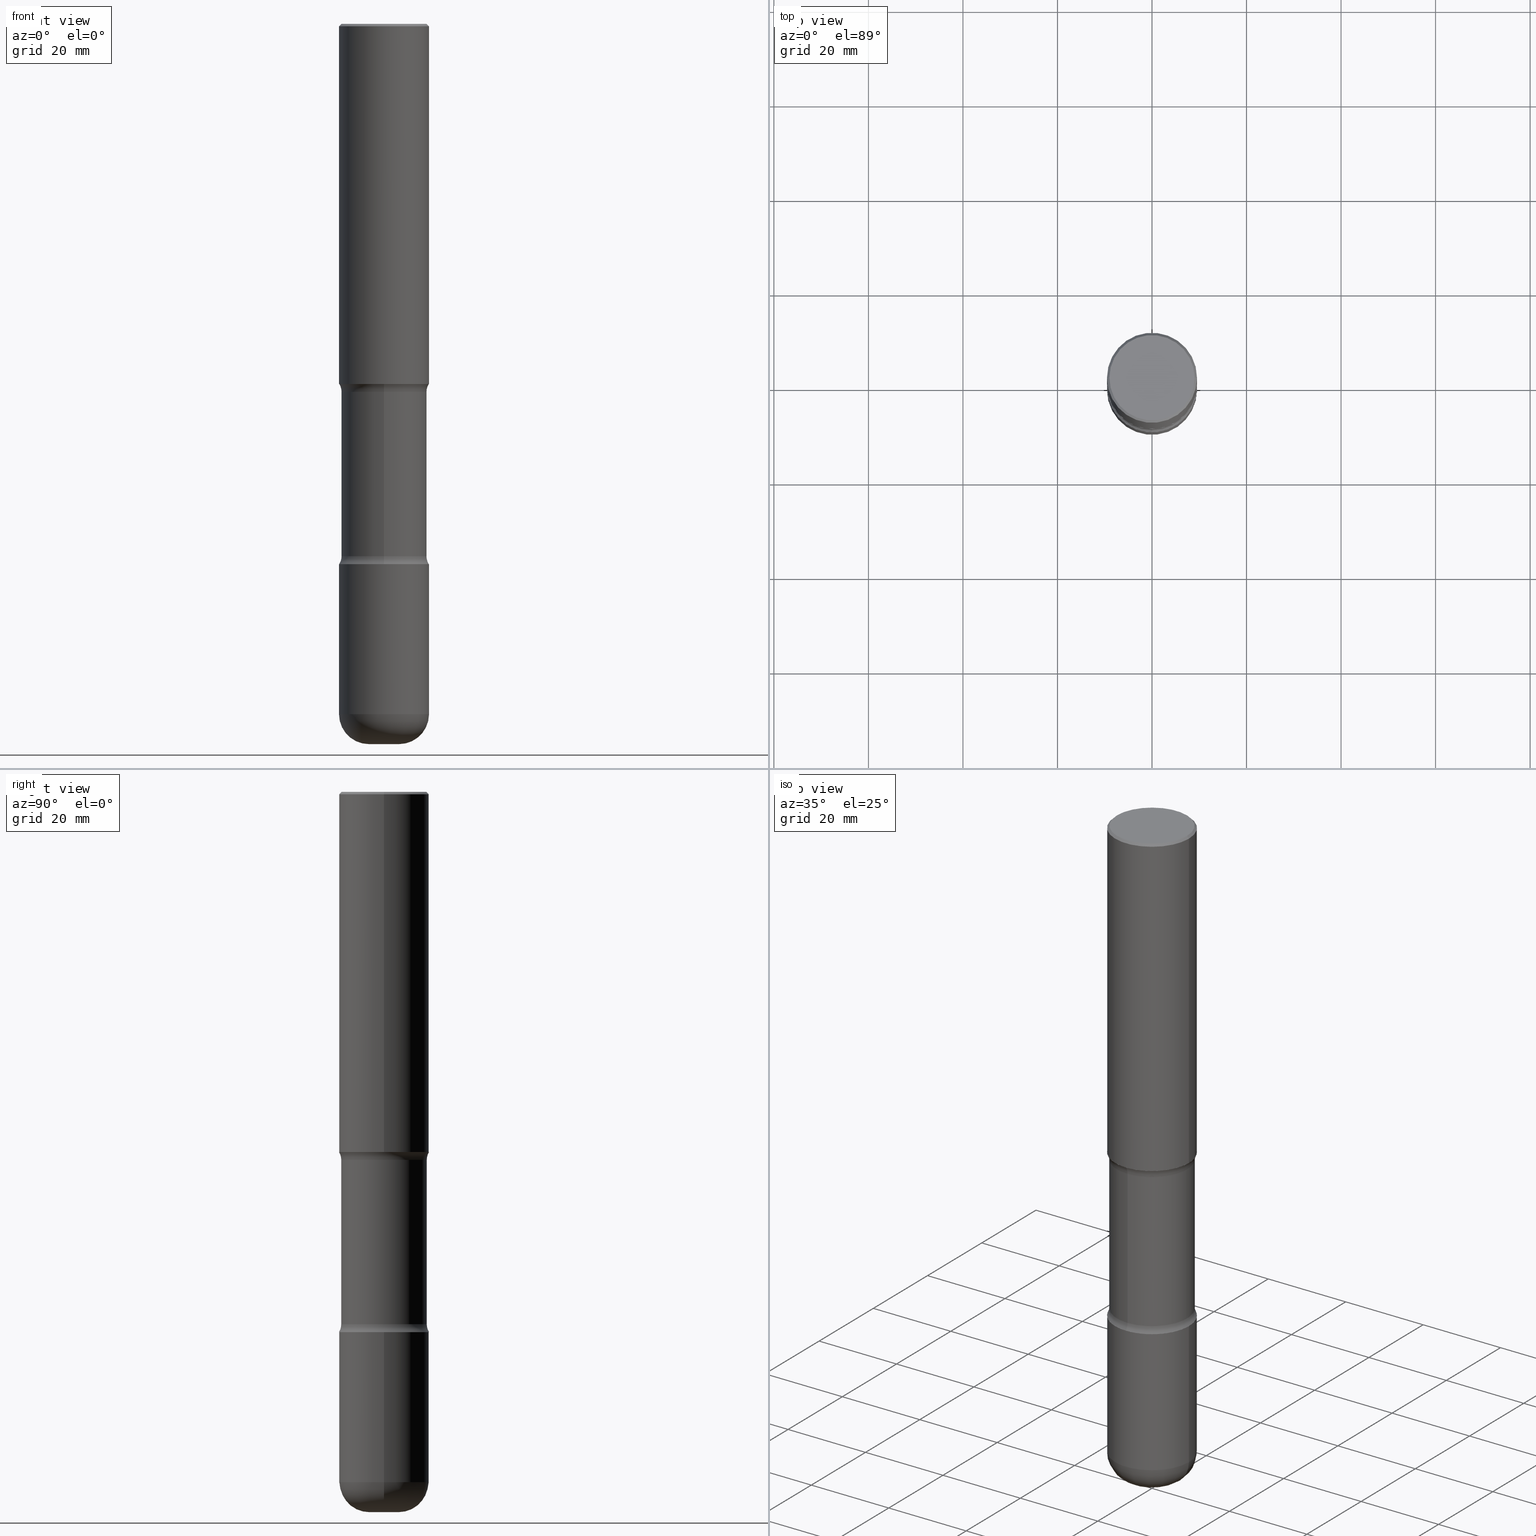
[diagram: canonical four-view strip — front | top / right | iso, engineering-drawing reading convention]
A machine part, canonical four-view strip (front | top / right | iso — engineering-drawing reading convention). The complete STEP part file that produces these views, byte-faithful:
ISO-10303-21;
HEADER;
FILE_DESCRIPTION (( 'STEP AP203' ),
    '1' );
FILE_NAME ('37950.STEP',
    '2024-03-02T01:44:41',
    ( '' ),
    ( '' ),
    'SwSTEP 2.0',
    'SolidWorks 2023',
    '' );
FILE_SCHEMA (( 'CONFIG_CONTROL_DESIGN' ));
ENDSEC;

DATA;
#1 = CARTESIAN_POINT ( 'NONE',  ( -2.508369580435144205E-15, -0.3562500000000108358, -3.065847835955328282 ) ) ;
#2 = VERTEX_POINT ( 'NONE', #532 ) ;
#3 = CARTESIAN_POINT ( 'NONE',  ( 4.890937612370289799E-31, -6.982962677686315028E-17, -0.02000000000000006981 ) ) ;
#4 = VERTEX_POINT ( 'NONE', #141 ) ;
#5 = AXIS2_PLACEMENT_3D ( 'NONE', #248, #452, #370 ) ;
#6 = LOCAL_TIME ( 20, 44, 41.00000000000000000, #250 ) ;
#7 = CARTESIAN_POINT ( 'NONE',  ( 7.402053284434616373E-29, -1.084094290665388719E-14, -3.065847835955329614 ) ) ;
#8 = VERTEX_POINT ( 'NONE', #235 ) ;
#9 =( CONVERSION_BASED_UNIT ( 'INCH', #429 ) LENGTH_UNIT ( ) NAMED_UNIT ( #436 ) );
#10 = CARTESIAN_POINT ( 'NONE',  ( 1.100460962783311244E-28, -1.571166602479415374E-14, -4.499999999999999112 ) ) ;
#11 = ORIENTED_EDGE ( 'NONE', *, *, #130, .T. ) ;
#12 = DIRECTION ( 'NONE',  ( 2.508247471065963170E-29, -3.401578717594097873E-15, -1.000000000000000000 ) ) ;
#13 = VERTEX_POINT ( 'NONE', #255 ) ;
#14 = PERSON_AND_ORGANIZATION ( #123, #503 ) ;
#15 = CIRCLE ( 'NONE', #327, 0.3750000000000003886 ) ;
#16 = AXIS2_PLACEMENT_3D ( 'NONE', #527, #22, #104 ) ;
#17 = CARTESIAN_POINT ( 'NONE',  ( 0.1250000000000005551, -2.182175836776964973E-14, -5.999999999999997335 ) ) ;
#18 = ORIENTED_EDGE ( 'NONE', *, *, #316, .T. ) ;
#19 = EDGE_CURVE ( 'NONE', #8, #56, #251, .T. ) ;
#20 = FACE_OUTER_BOUND ( 'NONE', #309, .T. ) ;
#21 = VERTEX_POINT ( 'NONE', #157 ) ;
#22 = DIRECTION ( 'NONE',  ( 2.445468806185136597E-29, -3.491481338843145583E-15, -1.000000000000000000 ) ) ;
#23 = ORIENTED_EDGE ( 'NONE', *, *, #239, .F. ) ;
#24 = AXIS2_PLACEMENT_3D ( 'NONE', #377, #458, #72 ) ;
#25 = AXIS2_PLACEMENT_3D ( 'NONE', #3, #217, #211 ) ;
#26 = ADVANCED_FACE ( 'NONE', ( #209 ), #544, .T. ) ;
#27 = VERTEX_POINT ( 'NONE', #113 ) ;
#28 = CARTESIAN_POINT ( 'NONE',  ( 7.336406418555407548E-29, -1.047444401652943320E-14, -2.999999999999999112 ) ) ;
#29 = CARTESIAN_POINT ( 'NONE',  ( 1.406144563556453319E-28, -2.007601769834808306E-14, -5.749999999999998224 ) ) ;
#30 = CIRCLE ( 'NONE', #234, 0.2499999999999993061 ) ;
#31 = AXIS2_PLACEMENT_3D ( 'NONE', #403, #144, #362 ) ;
#32 = DIRECTION ( 'NONE',  ( 1.000000000000000000, -6.982962677686265922E-15, 0.000000000000000000 ) ) ;
#33 = LOCAL_TIME ( 20, 44, 41.00000000000000000, #89 ) ;
#34 = ADVANCED_FACE ( 'NONE', ( #412 ), #47, .T. ) ;
#35 = DIRECTION ( 'NONE',  ( 2.508247471065963170E-29, -3.401578717594097873E-15, -1.000000000000000000 ) ) ;
#36 = CARTESIAN_POINT ( 'NONE',  ( 1.100460962783311244E-28, -1.571166602479415374E-14, -4.499999999999999112 ) ) ;
#37 = CARTESIAN_POINT ( 'NONE',  ( 7.407401089244291879E-29, -1.083328454578828421E-14, -3.065847835955329614 ) ) ;
#38 = APPROVAL_DATE_TIME ( #421, #139 ) ;
#39 = CC_DESIGN_PERSON_AND_ORGANIZATION_ASSIGNMENT ( #515, #382, ( #236 ) ) ;
#40 = AXIS2_PLACEMENT_3D ( 'NONE', #28, #501, #32 ) ;
#41 = VECTOR ( 'NONE', #166, 39.37007874015748143 ) ;
#42 = ORIENTED_EDGE ( 'NONE', *, *, #98, .F. ) ;
#43 = DIRECTION ( 'NONE',  ( -2.438088387897960049E-29, 3.491481338843145188E-15, 1.000000000000000000 ) ) ;
#44 = DIRECTION ( 'NONE',  ( 2.508247471065963170E-29, -3.401578717594097873E-15, -1.000000000000000000 ) ) ;
#45 = ORIENTED_EDGE ( 'NONE', *, *, #65, .F. ) ;
#46 = DIRECTION ( 'NONE',  ( 1.000000000000000000, -6.982962677686266711E-15, 4.876176775795935793E-29 ) ) ;
#47 = TOROIDAL_SURFACE ( 'NONE', #137, 0.1250000000000005274, 0.2499999999999993061 ) ;
#48 = AXIS2_PLACEMENT_3D ( 'NONE', #148, #231, #277 ) ;
#49 = EDGE_CURVE ( 'NONE', #4, #8, #155, .T. ) ;
#50 = CYLINDRICAL_SURFACE ( 'NONE', #95, 0.3750000000000003886 ) ;
#51 = CALENDAR_DATE ( 2024, 1, 3 ) ;
#52 = DIRECTION ( 'NONE',  ( -6.982962677686266711E-15, -1.000000000000000000, 3.491481338843145583E-15 ) ) ;
#53 = ORIENTED_EDGE ( 'NONE', *, *, #374, .F. ) ;
#54 = PRODUCT_RELATED_PRODUCT_CATEGORY ( 'detail', '', ( #79 ) ) ;
#55 = PLANE ( 'NONE',  #271 ) ;
#56 = VERTEX_POINT ( 'NONE', #369 ) ;
#57 = ADVANCED_FACE ( 'NONE', ( #415 ), #324, .F. ) ;
#58 = CIRCLE ( 'NONE', #491, 0.3750000000000003886 ) ;
#59 = PRODUCT_DEFINITION_FORMATION_WITH_SPECIFIED_SOURCE ( 'ANY', '', #79, .NOT_KNOWN. ) ;
#60 = APPROVAL_PERSON_ORGANIZATION ( #528, #139, #257 ) ;
#61 = CARTESIAN_POINT ( 'NONE',  ( 0.000000000000000000, 0.000000000000000000, 0.000000000000000000 ) ) ;
#62 = ORIENTED_EDGE ( 'NONE', *, *, #349, .F. ) ;
#63 = CARTESIAN_POINT ( 'NONE',  ( 7.242238421234168109E-29, -1.060929794840300496E-14, -2.999999999999999112 ) ) ;
#64 = ORIENTED_EDGE ( 'NONE', *, *, #75, .T. ) ;
#65 = EDGE_CURVE ( 'NONE', #276, #428, #259, .T. ) ;
#66 = FACE_OUTER_BOUND ( 'NONE', #238, .T. ) ;
#67 = ORIENTED_EDGE ( 'NONE', *, *, #65, .T. ) ;
#68 = AXIS2_PLACEMENT_3D ( 'NONE', #29, #153, #411 ) ;
#69 = AXIS2_PLACEMENT_3D ( 'NONE', #184, #188, #488 ) ;
#70 = CC_DESIGN_SECURITY_CLASSIFICATION ( #236, ( #59 ) ) ;
#71 = CARTESIAN_POINT ( 'NONE',  ( -0.1250000000000005274, -1.918783927864795467E-14, -5.749999999999998224 ) ) ;
#72 = DIRECTION ( 'NONE',  ( 1.000000000000000000, -6.982962677686266711E-15, 4.876231632511987623E-29 ) ) ;
#73 = SHAPE_DEFINITION_REPRESENTATION ( #216, #162 ) ;
#74 = DIRECTION ( 'NONE',  ( 1.000000000000000000, -6.982962677686265922E-15, 4.883557194083112901E-29 ) ) ;
#75 = EDGE_CURVE ( 'NONE', #241, #2, #30, .T. ) ;
#76 = DIRECTION ( 'NONE',  ( 0.7071067811865472397, -7.319954787623254468E-15, -0.7071067811865477948 ) ) ;
#77 = VECTOR ( 'NONE', #159, 39.37007874015748143 ) ;
#78 = CARTESIAN_POINT ( 'NONE',  ( 1.476698083443205790E-28, -2.081403410118529621E-14, -5.999999999999999112 ) ) ;
#79 = PRODUCT ( '37950', '37950', '', ( #266 ) ) ;
#80 = DIRECTION ( 'NONE',  ( -6.982962677686265133E-15, -1.000000000000000000, 0.000000000000000000 ) ) ;
#81 = CC_DESIGN_PERSON_AND_ORGANIZATION_ASSIGNMENT ( #14, #507, ( #286 ) ) ;
#82 = CARTESIAN_POINT ( 'NONE',  ( -0.3750000000000001110, 2.548781377355487113E-15, -0.02000000000000006981 ) ) ;
#83 = VERTEX_POINT ( 'NONE', #326 ) ;
#84 = DIRECTION ( 'NONE',  ( -2.445468806185136597E-29, 3.491481338843145583E-15, 1.000000000000000000 ) ) ;
#85 = AXIS2_PLACEMENT_3D ( 'NONE', #426, #514, #46 ) ;
#86 = CIRCLE ( 'NONE', #541, 0.3750000000000004996 ) ;
#87 = VERTEX_POINT ( 'NONE', #202 ) ;
#88 = DIRECTION ( 'NONE',  ( 1.000000000000000000, -6.982962677686265922E-15, 4.876176775795935793E-29 ) ) ;
#89 = COORDINATED_UNIVERSAL_TIME_OFFSET ( 5, 0, .BEHIND. ) ;
#90 = ORIENTED_EDGE ( 'NONE', *, *, #545, .F. ) ;
#91 = CALENDAR_DATE ( 2024, 1, 3 ) ;
#92 = ADVANCED_FACE ( 'NONE', ( #292 ), #108, .T. ) ;
#93 = DIRECTION ( 'NONE',  ( 6.982962677686265922E-15, 1.000000000000000000, -2.913971193241877611E-15 ) ) ;
#94 = CALENDAR_DATE ( 2024, 1, 3 ) ;
#95 = AXIS2_PLACEMENT_3D ( 'NONE', #61, #190, #484 ) ;
#96 = CC_DESIGN_APPROVAL ( #139, ( #59 ) ) ;
#97 = ORIENTED_EDGE ( 'NONE', *, *, #552, .T. ) ;
#98 = EDGE_CURVE ( 'NONE', #2, #27, #206, .T. ) ;
#99 = ORIENTED_EDGE ( 'NONE', *, *, #357, .F. ) ;
#100 = DIRECTION ( 'NONE',  ( -2.445468806185136597E-29, 3.491481338843145583E-15, 1.000000000000000000 ) ) ;
#101 = FACE_OUTER_BOUND ( 'NONE', #365, .T. ) ;
#102 = ORIENTED_EDGE ( 'NONE', *, *, #560, .T. ) ;
#103 = AXIS2_PLACEMENT_3D ( 'NONE', #201, #330, #204 ) ;
#104 = DIRECTION ( 'NONE',  ( -1.000000000000000000, 6.982962677686265922E-15, 0.000000000000000000 ) ) ;
#105 = FACE_OUTER_BOUND ( 'NONE', #450, .T. ) ;
#106 = APPROVAL_ROLE ( '' ) ;
#107 = EDGE_LOOP ( 'NONE', ( #401, #67, #185, #23 ) ) ;
#108 = PLANE ( 'NONE',  #416 ) ;
#109 = VECTOR ( 'NONE', #124, 39.37007874015748143 ) ;
#110 = DIRECTION ( 'NONE',  ( -6.982962677686268288E-15, -1.000000000000000000, 0.000000000000000000 ) ) ;
#111 = CARTESIAN_POINT ( 'NONE',  ( 1.467281283711081285E-28, -2.094888803305886324E-14, -5.999999999999997335 ) ) ;
#112 = EDGE_CURVE ( 'NONE', #13, #87, #530, .T. ) ;
#113 = CARTESIAN_POINT ( 'NONE',  ( 0.3750000000000001110, -2.269462870248043307E-14, -5.749999999999998224 ) ) ;
#114 = CARTESIAN_POINT ( 'NONE',  ( 0.3750000000000001110, -2.642516375941188423E-15, -0.02000000000000006981 ) ) ;
#115 = CALENDAR_DATE ( 2024, 1, 3 ) ;
#116 = CARTESIAN_POINT ( 'NONE',  ( -2.444052411705960129E-15, -0.3562500000000208278, -5.999999999999998224 ) ) ;
#117 = CIRCLE ( 'NONE', #187, 0.3562500000000000111 ) ;
#118 = CARTESIAN_POINT ( 'NONE',  ( 1.100460962783311244E-28, -1.571166602479415374E-14, -4.499999999999999112 ) ) ;
#119 = CC_DESIGN_APPROVAL ( #178, ( #236 ) ) ;
#120 = EDGE_CURVE ( 'NONE', #4, #83, #556, .T. ) ;
#121 = DIRECTION ( 'NONE',  ( 2.508247471065963170E-29, -3.401578717594097873E-15, -1.000000000000000000 ) ) ;
#122 = ORIENTED_EDGE ( 'NONE', *, *, #19, .T. ) ;
#123 = PERSON ( 'UNSPECIFIED', 'UNSPECIFIED', 'UNSPECIFIED', ('UNSPECIFIED'), ('UNSPECIFIED'), ('UNSPECIFIED') ) ;
#124 = DIRECTION ( 'NONE',  ( -2.445468806185136877E-29, 3.491481338843145188E-15, 1.000000000000000000 ) ) ;
#125 = ORIENTED_EDGE ( 'NONE', *, *, #161, .T. ) ;
#126 = FACE_OUTER_BOUND ( 'NONE', #404, .T. ) ;
#127 = AXIS2_PLACEMENT_3D ( 'NONE', #142, #12, #392 ) ;
#128 = ORIENTED_EDGE ( 'NONE', *, *, #405, .T. ) ;
#129 = DIRECTION ( 'NONE',  ( 1.000000000000000000, -6.982962677686265922E-15, 0.000000000000000000 ) ) ;
#130 = EDGE_CURVE ( 'NONE', #276, #56, #506, .T. ) ;
#131 = EDGE_LOOP ( 'NONE', ( #167, #559 ) ) ;
#132 = DIRECTION ( 'NONE',  ( 2.508247471065963170E-29, -3.401578717594097873E-15, -1.000000000000000000 ) ) ;
#133 = ORIENTED_EDGE ( 'NONE', *, *, #311, .T. ) ;
#134 = PERSON_AND_ORGANIZATION_ROLE ( 'design_owner' ) ;
#135 = DIRECTION ( 'NONE',  ( -2.445468806185136597E-29, 3.491481338843145583E-15, 1.000000000000000000 ) ) ;
#136 = ORIENTED_EDGE ( 'NONE', *, *, #451, .T. ) ;
#137 = AXIS2_PLACEMENT_3D ( 'NONE', #546, #462, #74 ) ;
#138 = TOROIDAL_SURFACE ( 'NONE', #366, 0.4812499999999999556, 0.1249999999999999584 ) ;
#139 = APPROVAL ( #469, 'UNSPECIFIED' ) ;
#140 = DIRECTION ( 'NONE',  ( 2.508247471065963170E-29, -3.401578717594097873E-15, -1.000000000000000000 ) ) ;
#141 = CARTESIAN_POINT ( 'NONE',  ( 2.618611004132461246E-15, 0.3749999999999845124, -4.500000000000000888 ) ) ;
#142 = CARTESIAN_POINT ( 'NONE',  ( 1.084358079904955852E-28, -1.548175953435291656E-14, -4.434152164044670386 ) ) ;
#143 = EDGE_LOOP ( 'NONE', ( #219, #215, #128, #42 ) ) ;
#144 = DIRECTION ( 'NONE',  ( 2.508247471065963170E-29, -3.401578717594097873E-15, -1.000000000000000000 ) ) ;
#145 = ORIENTED_EDGE ( 'NONE', *, *, #150, .F. ) ;
#146 = DESIGN_CONTEXT ( 'detailed design', #433, 'design' ) ;
#147 = AXIS2_PLACEMENT_3D ( 'NONE', #456, #504, #406 ) ;
#148 = CARTESIAN_POINT ( 'NONE',  ( 0.000000000000000000, 0.000000000000000000, 0.000000000000000000 ) ) ;
#149 = EDGE_LOOP ( 'NONE', ( #18, #11, #264, #496 ) ) ;
#150 = EDGE_CURVE ( 'NONE', #279, #470, #333, .T. ) ;
#151 = DIRECTION ( 'NONE',  ( 7.105427357601001859E-15, 1.000000000000000000, -3.491481338843145583E-15 ) ) ;
#152 = LINE ( 'NONE', #325, #77 ) ;
#153 = DIRECTION ( 'NONE',  ( -2.445468806185136597E-29, 3.491481338843145583E-15, 1.000000000000000000 ) ) ;
#154 = EDGE_CURVE ( 'NONE', #470, #279, #518, .T. ) ;
#155 = CIRCLE ( 'NONE', #197, 0.3750000000000003886 ) ;
#156 = CIRCLE ( 'NONE', #69, 0.3750000000000004441 ) ;
#157 = CARTESIAN_POINT ( 'NONE',  ( -0.3750000000000003886, -1.522930660247074112E-14, -4.499999999999999112 ) ) ;
#158 = DIRECTION ( 'NONE',  ( 6.982962677686265133E-15, 1.000000000000000000, -3.067338098149347905E-15 ) ) ;
#159 = DIRECTION ( 'NONE',  ( -2.445468806185136877E-29, 3.491481338843145188E-15, 1.000000000000000000 ) ) ;
#160 = DIRECTION ( 'NONE',  ( -2.445468806185136877E-29, 3.491481338843145188E-15, 1.000000000000000000 ) ) ;
#161 = EDGE_CURVE ( 'NONE', #27, #521, #247, .T. ) ;
#162 = ADVANCED_BREP_SHAPE_REPRESENTATION ( '37950', ( #536, #535, #539, #547 ), #549 ) ;
#163 = CIRCLE ( 'NONE', #482, 0.1249999999999999584 ) ;
#164 = AXIS2_PLACEMENT_3D ( 'NONE', #336, #476, #431 ) ;
#165 = CARTESIAN_POINT ( 'NONE',  ( 4.890937612370289799E-31, -6.982962677686315028E-17, -0.02000000000000006981 ) ) ;
#166 = DIRECTION ( 'NONE',  ( 2.508247471065963170E-29, -3.401578717594097873E-15, -1.000000000000000000 ) ) ;
#167 = ORIENTED_EDGE ( 'NONE', *, *, #154, .T. ) ;
#168 = DIRECTION ( 'NONE',  ( 1.000000000000000000, 0.000000000000000000, 0.000000000000000000 ) ) ;
#169 = DIRECTION ( 'NONE',  ( 2.508247471065963170E-29, -3.401578717594097873E-15, -1.000000000000000000 ) ) ;
#170 = COORDINATED_UNIVERSAL_TIME_OFFSET ( 5, 0, .BEHIND. ) ;
#171 = ORIENTED_EDGE ( 'NONE', *, *, #254, .F. ) ;
#172 = EDGE_CURVE ( 'NONE', #428, #313, #163, .T. ) ;
#173 = TOROIDAL_SURFACE ( 'NONE', #243, 0.4812500000000000666, 0.1249999999999998612 ) ;
#174 = APPROVAL_STATUS ( 'not_yet_approved' ) ;
#175 = CIRCLE ( 'NONE', #502, 0.3750000000000001110 ) ;
#176 = LOCAL_TIME ( 20, 44, 41.00000000000000000, #170 ) ;
#177 = ORIENTED_EDGE ( 'NONE', *, *, #552, .F. ) ;
#178 = APPROVAL ( #174, 'UNSPECIFIED' ) ;
#179 = CYLINDRICAL_SURFACE ( 'NONE', #85, 0.3750000000000002220 ) ;
#180 = ORIENTED_EDGE ( 'NONE', *, *, #457, .F. ) ;
#181 = DIRECTION ( 'NONE',  ( -2.445468806185136597E-29, 3.491481338843145583E-15, 1.000000000000000000 ) ) ;
#182 = ORIENTED_EDGE ( 'NONE', *, *, #475, .T. ) ;
#183 = APPROVAL ( #310, 'UNSPECIFIED' ) ;
#184 = CARTESIAN_POINT ( 'NONE',  ( 1.406144563556453319E-28, -2.007601769834808306E-14, -5.749999999999998224 ) ) ;
#185 = ORIENTED_EDGE ( 'NONE', *, *, #323, .T. ) ;
#186 = CLOSED_SHELL ( 'NONE', ( #203, #280, #363, #513, #210, #537 ) ) ;
#187 = AXIS2_PLACEMENT_3D ( 'NONE', #383, #132, #437 ) ;
#188 = DIRECTION ( 'NONE',  ( -2.445468806185136597E-29, 3.491481338843145583E-15, 1.000000000000000000 ) ) ;
#189 = ORIENTED_EDGE ( 'NONE', *, *, #112, .F. ) ;
#190 = DIRECTION ( 'NONE',  ( -2.445468806185136597E-29, 3.491481338843145583E-15, 1.000000000000000000 ) ) ;
#191 = ORIENTED_EDGE ( 'NONE', *, *, #526, .F. ) ;
#192 = DATE_AND_TIME ( #91, #262 ) ;
#193 = EDGE_CURVE ( 'NONE', #521, #21, #15, .T. ) ;
#194 = DIRECTION ( 'NONE',  ( 6.982962677686265133E-15, 1.000000000000000000, -3.067338098149347905E-15 ) ) ;
#195 = ORIENTED_EDGE ( 'NONE', *, *, #374, .T. ) ;
#196 = APPROVAL_DATE_TIME ( #192, #183 ) ;
#197 = AXIS2_PLACEMENT_3D ( 'NONE', #205, #465, #550 ) ;
#198 = CIRCLE ( 'NONE', #303, 0.3750000000000004996 ) ;
#199 = FACE_OUTER_BOUND ( 'NONE', #223, .T. ) ;
#200 = ORIENTED_EDGE ( 'NONE', *, *, #98, .T. ) ;
#201 = CARTESIAN_POINT ( 'NONE',  ( 1.406144563556453319E-28, -2.007601769834808306E-14, -5.749999999999998224 ) ) ;
#202 = CARTESIAN_POINT ( 'NONE',  ( 0.3750000000000003886, -1.309305502066178637E-14, -2.999999999999999112 ) ) ;
#203 = ADVANCED_FACE ( 'NONE', ( #261 ), #179, .T. ) ;
#204 = DIRECTION ( 'NONE',  ( 1.000000000000000000, -6.982962677686265922E-15, 4.883557194083112901E-29 ) ) ;
#205 = CARTESIAN_POINT ( 'NONE',  ( 1.100460962783311244E-28, -1.571166602479415374E-14, -4.499999999999999112 ) ) ;
#206 = CIRCLE ( 'NONE', #68, 0.3750000000000004441 ) ;
#207 = LINE ( 'NONE', #114, #483 ) ;
#208 = CARTESIAN_POINT ( 'NONE',  ( 3.360550788636623928E-15, 0.4812499999999845790, -4.434152164044672162 ) ) ;
#209 = FACE_OUTER_BOUND ( 'NONE', #149, .T. ) ;
#210 = ADVANCED_FACE ( 'NONE', ( #126 ), #304, .F. ) ;
#211 = DIRECTION ( 'NONE',  ( 1.000000000000000000, -6.982962677686265922E-15, 0.000000000000000000 ) ) ;
#212 = AXIS2_PLACEMENT_3D ( 'NONE', #36, #467, #297 ) ;
#213 = DIRECTION ( 'NONE',  ( 2.508247471065963170E-29, -3.401578717594097873E-15, -1.000000000000000000 ) ) ;
#214 = PERSON_AND_ORGANIZATION ( #123, #503 ) ;
#215 = ORIENTED_EDGE ( 'NONE', *, *, #545, .T. ) ;
#216 = PRODUCT_DEFINITION_SHAPE ( 'NONE', 'NONE',  #286 ) ;
#217 = DIRECTION ( 'NONE',  ( -2.445468806185136597E-29, 3.491481338843145583E-15, 1.000000000000000000 ) ) ;
#218 = DATE_AND_TIME ( #459, #6 ) ;
#219 = ORIENTED_EDGE ( 'NONE', *, *, #75, .F. ) ;
#220 = ADVANCED_FACE ( 'NONE', ( #265 ), #173, .F. ) ;
#221 = CARTESIAN_POINT ( 'NONE',  ( -0.1250000000000005551, -1.873609602630322584E-14, -5.999999999999997335 ) ) ;
#222 = PERSON_AND_ORGANIZATION_ROLE ( 'creator' ) ;
#223 = EDGE_LOOP ( 'NONE', ( #102, #64, #53, #427 ) ) ;
#224 = APPLICATION_PROTOCOL_DEFINITION ( 'international standard', 'config_control_design', 1994, #433 ) ;
#225 = CARTESIAN_POINT ( 'NONE',  ( 1.084358079904955852E-28, -1.548175953435291656E-14, -4.434152164044670386 ) ) ;
#226 = CIRCLE ( 'NONE', #435, 0.1250000000000005551 ) ;
#227 = ORIENTED_EDGE ( 'NONE', *, *, #457, .T. ) ;
#228 = ADVANCED_FACE ( 'NONE', ( #378 ), #490, .F. ) ;
#229 = CARTESIAN_POINT ( 'NONE',  ( 7.402053284434616373E-29, -1.084094290665388719E-14, -3.065847835955329614 ) ) ;
#230 = VERTEX_POINT ( 'NONE', #523 ) ;
#231 = DIRECTION ( 'NONE',  ( -2.445468806185136597E-29, 3.491481338843145583E-15, 1.000000000000000000 ) ) ;
#232 = ORIENTED_EDGE ( 'NONE', *, *, #294, .F. ) ;
#233 = CARTESIAN_POINT ( 'NONE',  ( 0.1250000000000005274, -2.094888803305886955E-14, -5.749999999999998224 ) ) ;
#234 = AXIS2_PLACEMENT_3D ( 'NONE', #71, #151, #548 ) ;
#235 = CARTESIAN_POINT ( 'NONE',  ( -2.572686749164215473E-15, -0.3750000000000159317, -4.499999999999998224 ) ) ;
#236 = SECURITY_CLASSIFICATION ( '', '', #386 ) ;
#237 = DIRECTION ( 'NONE',  ( 6.982962677686266711E-15, 1.000000000000000000, -2.913971193241876822E-15 ) ) ;
#238 = EDGE_LOOP ( 'NONE', ( #408, #543, #315, #387 ) ) ;
#239 = EDGE_CURVE ( 'NONE', #56, #83, #117, .T. ) ;
#240 = DIRECTION ( 'NONE',  ( 2.508247471065963170E-29, -3.401578717594097873E-15, -1.000000000000000000 ) ) ;
#241 = VERTEX_POINT ( 'NONE', #221 ) ;
#242 = ORIENTED_EDGE ( 'NONE', *, *, #349, .T. ) ;
#243 = AXIS2_PLACEMENT_3D ( 'NONE', #225, #44, #347 ) ;
#244 = AXIS2_PLACEMENT_3D ( 'NONE', #463, #100, #554 ) ;
#245 = CC_DESIGN_PERSON_AND_ORGANIZATION_ASSIGNMENT ( #214, #222, ( #59 ) ) ;
#246 = DIRECTION ( 'NONE',  ( 2.438088387897960049E-29, -3.491481338843145188E-15, -1.000000000000000000 ) ) ;
#247 = LINE ( 'NONE', #553, #278 ) ;
#248 = CARTESIAN_POINT ( 'NONE',  ( 2.478951750578624998E-15, 0.3550000000000000377, -1.237341619044266624E-15 ) ) ;
#249 = DIRECTION ( 'NONE',  ( 1.000000000000000000, -6.860497997771530774E-15, 4.841899869197618814E-29 ) ) ;
#250 = COORDINATED_UNIVERSAL_TIME_OFFSET ( 5, 0, .BEHIND. ) ;
#251 = CIRCLE ( 'NONE', #372, 0.1249999999999998335 ) ;
#252 = CONICAL_SURFACE ( 'NONE', #164, 0.3750000000000001110, 0.7853981633974479459 ) ;
#253 = DIRECTION ( 'NONE',  ( 6.860497997771531562E-15, 1.000000000000000000, 0.000000000000000000 ) ) ;
#254 = EDGE_CURVE ( 'NONE', #8, #4, #417, .T. ) ;
#255 = CARTESIAN_POINT ( 'NONE',  ( -0.3750000000000003886, -2.607601562552767029E-15, -2.999999999999999112 ) ) ;
#256 = DIRECTION ( 'NONE',  ( -0.7071067811865472397, 2.468850131082253905E-15, -0.7071067811865477948 ) ) ;
#257 = APPROVAL_ROLE ( '' ) ;
#258 = ORIENTED_EDGE ( 'NONE', *, *, #451, .F. ) ;
#259 = CIRCLE ( 'NONE', #445, 0.3562500000000000111 ) ;
#260 = VECTOR ( 'NONE', #256, 39.37007874015748143 ) ;
#261 = FACE_OUTER_BOUND ( 'NONE', #299, .T. ) ;
#262 = LOCAL_TIME ( 20, 44, 41.00000000000000000, #478 ) ;
#263 = EDGE_CURVE ( 'NONE', #13, #340, #511, .T. ) ;
#264 = ORIENTED_EDGE ( 'NONE', *, *, #494, .F. ) ;
#265 = FACE_OUTER_BOUND ( 'NONE', #444, .T. ) ;
#266 = MECHANICAL_CONTEXT ( 'NONE', #402, 'mechanical' ) ;
#267 = DIRECTION ( 'NONE',  ( 2.508247471065963170E-29, -3.401578717594097873E-15, -1.000000000000000000 ) ) ;
#268 = EDGE_LOOP ( 'NONE', ( #171, #122, #453, #480 ) ) ;
#269 = EDGE_CURVE ( 'NONE', #340, #283, #295, .T. ) ;
#270 = CARTESIAN_POINT ( 'NONE',  ( 1.100460962783311244E-28, -1.571166602479415374E-14, -4.499999999999999112 ) ) ;
#271 = AXIS2_PLACEMENT_3D ( 'NONE', #358, #449, #398 ) ;
#272 = ORIENTED_EDGE ( 'NONE', *, *, #172, .F. ) ;
#273 = CYLINDRICAL_SURFACE ( 'NONE', #48, 0.3750000000000003886 ) ;
#274 = ORIENTED_EDGE ( 'NONE', *, *, #263, .T. ) ;
#275 = DIRECTION ( 'NONE',  ( 6.982962677686265922E-15, 1.000000000000000000, -3.401578717594097873E-15 ) ) ;
#276 = VERTEX_POINT ( 'NONE', #1 ) ;
#277 = DIRECTION ( 'NONE',  ( 1.000000000000000000, -6.982962677686265922E-15, 4.876176775795935793E-29 ) ) ;
#278 = VECTOR ( 'NONE', #160, 39.37007874015748143 ) ;
#279 = VERTEX_POINT ( 'NONE', #345 ) ;
#280 = ADVANCED_FACE ( 'NONE', ( #520 ), #252, .T. ) ;
#281 = VECTOR ( 'NONE', #308, 39.37007874015748143 ) ;
#282 = DIRECTION ( 'NONE',  ( 1.000000000000000000, -6.982962677686265922E-15, 0.000000000000000000 ) ) ;
#283 = VERTEX_POINT ( 'NONE', #555 ) ;
#284 = DIRECTION ( 'NONE',  ( 1.000000000000000000, -6.982962677686267499E-15, 0.000000000000000000 ) ) ;
#285 = EDGE_LOOP ( 'NONE', ( #306, #242 ) ) ;
#286 = PRODUCT_DEFINITION ( 'UNKNOWN', '', #59, #146 ) ;
#287 = CARTESIAN_POINT ( 'NONE',  ( 8.792616034765006262E-28, 8.395407492364847832E-14, -5.999999999999998224 ) ) ;
#288 = UNCERTAINTY_MEASURE_WITH_UNIT (LENGTH_MEASURE( 1.000000000000000082E-05 ), #9, 'distance_accuracy_value', 'NONE');
#289 = CIRCLE ( 'NONE', #373, 0.2499999999999993061 ) ;
#290 = DIRECTION ( 'NONE',  ( 1.000000000000000000, -6.982962677686266711E-15, 4.876231632511987623E-29 ) ) ;
#291 = CARTESIAN_POINT ( 'NONE',  ( 0.3750000000000003886, -1.833027702892650691E-14, -4.499999999999999112 ) ) ;
#292 = FACE_OUTER_BOUND ( 'NONE', #442, .T. ) ;
#293 = DIRECTION ( 'NONE',  ( -2.445468806185136597E-29, 3.491481338843145583E-15, 1.000000000000000000 ) ) ;
#294 = EDGE_CURVE ( 'NONE', #283, #340, #175, .T. ) ;
#295 = CIRCLE ( 'NONE', #25, 0.3750000000000001110 ) ;
#296 = CC_DESIGN_APPROVAL ( #183, ( #286 ) ) ;
#297 = DIRECTION ( 'NONE',  ( -1.000000000000000000, 6.982962677686265922E-15, -4.876176775795935793E-29 ) ) ;
#298 = DIRECTION ( 'NONE',  ( 1.000000000000000000, -6.982962677686265922E-15, 0.000000000000000000 ) ) ;
#299 = EDGE_LOOP ( 'NONE', ( #182, #274, #232, #191 ) ) ;
#300 = EDGE_CURVE ( 'NONE', #2, #21, #479, .T. ) ;
#301 = CARTESIAN_POINT ( 'NONE',  ( 1.476698083443205790E-28, -2.081403410118529621E-14, -5.999999999999999112 ) ) ;
#302 =( NAMED_UNIT ( * ) SI_UNIT ( $, .STERADIAN. ) SOLID_ANGLE_UNIT ( ) );
#303 = AXIS2_PLACEMENT_3D ( 'NONE', #317, #495, #352 ) ;
#304 = PLANE ( 'NONE',  #364 ) ;
#305 = DIRECTION ( 'NONE',  ( 6.982962677686265922E-15, 1.000000000000000000, -3.401578717594097873E-15 ) ) ;
#306 = ORIENTED_EDGE ( 'NONE', *, *, #193, .T. ) ;
#307 = APPROVAL_ROLE ( '' ) ;
#308 = DIRECTION ( 'NONE',  ( -2.445468806185136877E-29, 3.491481338843145188E-15, 1.000000000000000000 ) ) ;
#309 = EDGE_LOOP ( 'NONE', ( #258, #180 ) ) ;
#310 = APPROVAL_STATUS ( 'not_yet_approved' ) ;
#311 = EDGE_CURVE ( 'NONE', #470, #340, #342, .T. ) ;
#312 = FACE_OUTER_BOUND ( 'NONE', #393, .T. ) ;
#313 = VERTEX_POINT ( 'NONE', #420 ) ;
#314 = CARTESIAN_POINT ( 'NONE',  ( -0.3750000000000001110, 2.548781377355487113E-15, -0.02000000000000006981 ) ) ;
#315 = ORIENTED_EDGE ( 'NONE', *, *, #526, .T. ) ;
#316 = EDGE_CURVE ( 'NONE', #428, #276, #557, .T. ) ;
#317 = CARTESIAN_POINT ( 'NONE',  ( 7.242238421234168109E-29, -1.060929794840300496E-14, -2.999999999999999112 ) ) ;
#318 = ORIENTED_EDGE ( 'NONE', *, *, #294, .T. ) ;
#319 = CARTESIAN_POINT ( 'NONE',  ( 2.487680453925806274E-15, 0.3562499999999891309, -3.065847835955330503 ) ) ;
#320 = ORIENTED_EDGE ( 'NONE', *, *, #300, .T. ) ;
#321 = FACE_OUTER_BOUND ( 'NONE', #493, .T. ) ;
#322 = ORIENTED_EDGE ( 'NONE', *, *, #120, .T. ) ;
#323 = EDGE_CURVE ( 'NONE', #428, #83, #381, .T. ) ;
#324 = PLANE ( 'NONE',  #212 ) ;
#325 = CARTESIAN_POINT ( 'NONE',  ( 0.3750000000000002220, -2.618611004132351594E-15, 1.828566290923477043E-29 ) ) ;
#326 = CARTESIAN_POINT ( 'NONE',  ( 2.487680453925840195E-15, 0.3562499999999844680, -4.434152164044670386 ) ) ;
#327 = AXIS2_PLACEMENT_3D ( 'NONE', #118, #84, #129 ) ;
#328 = TOROIDAL_SURFACE ( 'NONE', #127, 0.4812500000000000666, 0.1249999999999998612 ) ;
#329 = DIRECTION ( 'NONE',  ( -1.000000000000000000, 6.982962677686265922E-15, -4.876176775795935793E-29 ) ) ;
#330 = DIRECTION ( 'NONE',  ( -2.445468806185136597E-29, 3.491481338843145583E-15, 1.000000000000000000 ) ) ;
#331 = ADVANCED_FACE ( 'NONE', ( #338 ), #512, .T. ) ;
#332 = CARTESIAN_POINT ( 'NONE',  ( 3.360550788636589613E-15, 0.4812499999999890754, -3.065847835955331391 ) ) ;
#333 = CIRCLE ( 'NONE', #354, 0.3550000000000000377 ) ;
#334 = AXIS2_PLACEMENT_3D ( 'NONE', #533, #492, #531 ) ;
#335 = LOCAL_TIME ( 20, 44, 41.00000000000000000, #461 ) ;
#336 = CARTESIAN_POINT ( 'NONE',  ( 4.890937612370289799E-31, -6.982962677686315028E-17, -0.02000000000000006981 ) ) ;
#337 = CC_DESIGN_PERSON_AND_ORGANIZATION_ASSIGNMENT ( #438, #343, ( #59 ) ) ;
#338 = FACE_OUTER_BOUND ( 'NONE', #107, .T. ) ;
#339 = PERSON_AND_ORGANIZATION ( #123, #503 ) ;
#340 = VERTEX_POINT ( 'NONE', #314 ) ;
#341 = APPLICATION_PROTOCOL_DEFINITION ( 'international standard', 'config_control_design', 1994, #402 ) ;
#342 = LINE ( 'NONE', #82, #260 ) ;
#343 = PERSON_AND_ORGANIZATION_ROLE ( 'design_supplier' ) ;
#344 = ORIENTED_EDGE ( 'NONE', *, *, #311, .F. ) ;
#345 = CARTESIAN_POINT ( 'NONE',  ( 0.3550000000000000377, -2.538996582575041048E-15, 4.268512490117958041E-18 ) ) ;
#346 = PERSON_AND_ORGANIZATION ( #123, #503 ) ;
#347 = DIRECTION ( 'NONE',  ( 6.982962677686265922E-15, 1.000000000000000000, -3.401578717594097873E-15 ) ) ;
#348 = DATE_AND_TIME ( #94, #33 ) ;
#349 = EDGE_CURVE ( 'NONE', #21, #521, #58, .T. ) ;
#350 = EDGE_LOOP ( 'NONE', ( #45, #540, #227, #272 ) ) ;
#351 = CARTESIAN_POINT ( 'NONE',  ( 0.000000000000000000, 0.000000000000000000, 0.000000000000000000 ) ) ;
#352 = DIRECTION ( 'NONE',  ( 6.982962677686266711E-15, 1.000000000000000000, -2.913971193241876822E-15 ) ) ;
#353 = ORIENTED_EDGE ( 'NONE', *, *, #154, .F. ) ;
#354 = AXIS2_PLACEMENT_3D ( 'NONE', #418, #293, #290 ) ;
#355 = DIRECTION ( 'NONE',  ( 2.508247471065962609E-29, -3.401578717594097873E-15, -1.000000000000000000 ) ) ;
#356 = ORIENTED_EDGE ( 'NONE', *, *, #560, .F. ) ;
#357 = EDGE_CURVE ( 'NONE', #276, #230, #510, .T. ) ;
#358 = CARTESIAN_POINT ( 'NONE',  ( 1.100460962783311244E-28, -1.571166602479415374E-14, -4.499999999999999112 ) ) ;
#359 = ORIENTED_EDGE ( 'NONE', *, *, #19, .F. ) ;
#360 = PLANE ( 'NONE',  #519 ) ;
#361 = ORIENTED_EDGE ( 'NONE', *, *, #316, .F. ) ;
#362 = DIRECTION ( 'NONE',  ( 6.982962677686265133E-15, 1.000000000000000000, -3.067338098149347905E-15 ) ) ;
#363 = ADVANCED_FACE ( 'NONE', ( #105 ), #380, .T. ) ;
#364 = AXIS2_PLACEMENT_3D ( 'NONE', #474, #43, #88 ) ;
#365 = EDGE_LOOP ( 'NONE', ( #384, #200, #125, #62 ) ) ;
#366 = AXIS2_PLACEMENT_3D ( 'NONE', #229, #240, #275 ) ;
#367 = APPROVAL_PERSON_ORGANIZATION ( #339, #178, #106 ) ;
#368 = CARTESIAN_POINT ( 'NONE',  ( 7.407401089244291879E-29, -1.083328454578828421E-14, -3.065847835955329614 ) ) ;
#369 = CARTESIAN_POINT ( 'NONE',  ( -2.508369580435107128E-15, -0.3562500000000154987, -4.434152164044668609 ) ) ;
#370 = DIRECTION ( 'NONE',  ( -1.000000000000000000, 6.982962677686265922E-15, -4.876176775795935793E-29 ) ) ;
#371 = DIRECTION ( 'NONE',  ( 6.982962677686265133E-15, 1.000000000000000000, -3.067338098149347905E-15 ) ) ;
#372 = AXIS2_PLACEMENT_3D ( 'NONE', #505, #249, #253 ) ;
#373 = AXIS2_PLACEMENT_3D ( 'NONE', #233, #52, #284 ) ;
#374 = EDGE_CURVE ( 'NONE', #27, #2, #156, .T. ) ;
#375 = PLANE ( 'NONE',  #5 ) ;
#376 = DIRECTION ( 'NONE',  ( -1.000000000000000000, 6.982962677686265922E-15, -4.883557194083112901E-29 ) ) ;
#377 = CARTESIAN_POINT ( 'NONE',  ( -1.043851414335219820E-46, 1.490343170380447200E-32, 4.268512490100411279E-18 ) ) ;
#378 = FACE_OUTER_BOUND ( 'NONE', #350, .T. ) ;
#379 = CC_DESIGN_PERSON_AND_ORGANIZATION_ASSIGNMENT ( #346, #134, ( #79 ) ) ;
#380 = CONICAL_SURFACE ( 'NONE', #16, 0.3750000000000001110, 0.7853981633974479459 ) ;
#381 = LINE ( 'NONE', #558, #41 ) ;
#382 = PERSON_AND_ORGANIZATION_ROLE ( 'classification_officer' ) ;
#383 = CARTESIAN_POINT ( 'NONE',  ( 1.083944695982298980E-28, -1.548767942740887449E-14, -4.434152164044669497 ) ) ;
#384 = ORIENTED_EDGE ( 'NONE', *, *, #300, .F. ) ;
#385 = CARTESIAN_POINT ( 'NONE',  ( -0.3750000000000002220, 2.664535259100377275E-15, -1.844600658845590719E-29 ) ) ;
#386 = SECURITY_CLASSIFICATION_LEVEL ( 'unclassified' ) ;
#387 = ORIENTED_EDGE ( 'NONE', *, *, #269, .F. ) ;
#388 = AXIS2_PLACEMENT_3D ( 'NONE', #7, #121, #305 ) ;
#389 = ADVANCED_FACE ( 'NONE', ( #101 ), #273, .T. ) ;
#390 = AXIS2_PLACEMENT_3D ( 'NONE', #301, #169, #194 ) ;
#391 = DIRECTION ( 'NONE',  ( -2.445468806185136597E-29, 3.491481338843145583E-15, 1.000000000000000000 ) ) ;
#392 = DIRECTION ( 'NONE',  ( 6.982962677686265922E-15, 1.000000000000000000, -3.401578717594097873E-15 ) ) ;
#393 = EDGE_LOOP ( 'NONE', ( #99, #361, #485, #136 ) ) ;
#394 =( LENGTH_UNIT ( ) NAMED_UNIT ( * ) SI_UNIT ( $, .METRE. ) );
#395 = FACE_OUTER_BOUND ( 'NONE', #534, .T. ) ;
#396 = ORIENTED_EDGE ( 'NONE', *, *, #161, .F. ) ;
#397 = ADVANCED_FACE ( 'NONE', ( #312 ), #138, .F. ) ;
#398 = DIRECTION ( 'NONE',  ( -6.982962677686265922E-15, -1.000000000000000000, 3.401578717594097873E-15 ) ) ;
#399 = CIRCLE ( 'NONE', #244, 0.1250000000000005551 ) ;
#400 = ORIENTED_EDGE ( 'NONE', *, *, #269, .T. ) ;
#401 = ORIENTED_EDGE ( 'NONE', *, *, #130, .F. ) ;
#402 = APPLICATION_CONTEXT ( 'configuration controlled 3d designs of mechanical parts and assemblies' ) ;
#403 = CARTESIAN_POINT ( 'NONE',  ( 1.083944695982298980E-28, -1.548767942740887449E-14, -4.434152164044669497 ) ) ;
#404 = EDGE_LOOP ( 'NONE', ( #489, #189 ) ) ;
#405 = EDGE_CURVE ( 'NONE', #422, #27, #289, .T. ) ;
#406 = DIRECTION ( 'NONE',  ( 1.000000000000000000, -6.982962677686266711E-15, 4.876176775795935793E-29 ) ) ;
#407 = AXIS2_PLACEMENT_3D ( 'NONE', #208, #376, #110 ) ;
#408 = ORIENTED_EDGE ( 'NONE', *, *, #263, .F. ) ;
#409 = TOROIDAL_SURFACE ( 'NONE', #103, 0.1250000000000005274, 0.2499999999999993061 ) ;
#410 = FACE_OUTER_BOUND ( 'NONE', #131, .T. ) ;
#411 = DIRECTION ( 'NONE',  ( 1.000000000000000000, -6.982962677686265133E-15, 0.000000000000000000 ) ) ;
#412 = FACE_OUTER_BOUND ( 'NONE', #143, .T. ) ;
#413 = ADVANCED_FACE ( 'NONE', ( #321 ), #55, .F. ) ;
#414 = DIRECTION ( 'NONE',  ( 1.000000000000000000, -6.982962677686263555E-15, 0.000000000000000000 ) ) ;
#415 = FACE_OUTER_BOUND ( 'NONE', #285, .T. ) ;
#416 = AXIS2_PLACEMENT_3D ( 'NONE', #287, #246, #329 ) ;
#417 = CIRCLE ( 'NONE', #424, 0.3750000000000003886 ) ;
#418 = CARTESIAN_POINT ( 'NONE',  ( -1.043851414335219820E-46, 1.490343170380447200E-32, 4.268512490100411279E-18 ) ) ;
#419 = ADVANCED_FACE ( 'NONE', ( #395 ), #50, .T. ) ;
#420 = CARTESIAN_POINT ( 'NONE',  ( 2.618611004132426142E-15, 0.3749999999999898415, -3.000000000000000444 ) ) ;
#421 = DATE_AND_TIME ( #51, #176 ) ;
#422 = VERTEX_POINT ( 'NONE', #17 ) ;
#423 = VECTOR ( 'NONE', #35, 39.37007874015748143 ) ;
#424 = AXIS2_PLACEMENT_3D ( 'NONE', #270, #267, #93 ) ;
#425 = APPROVAL_PERSON_ORGANIZATION ( #522, #183, #307 ) ;
#426 = CARTESIAN_POINT ( 'NONE',  ( 0.000000000000000000, 0.000000000000000000, 0.000000000000000000 ) ) ;
#427 = ORIENTED_EDGE ( 'NONE', *, *, #405, .F. ) ;
#428 = VERTEX_POINT ( 'NONE', #319 ) ;
#429 = LENGTH_MEASURE_WITH_UNIT ( LENGTH_MEASURE( 0.02539999999999999897 ), #394 );
#430 = ADVANCED_FACE ( 'NONE', ( #441 ), #328, .F. ) ;
#431 = DIRECTION ( 'NONE',  ( -1.000000000000000000, 6.982962677686265922E-15, 0.000000000000000000 ) ) ;
#432 = DATE_TIME_ROLE ( 'creation_date' ) ;
#433 = APPLICATION_CONTEXT ( 'configuration controlled 3d designs of mechanical parts and assemblies' ) ;
#434 = CLOSED_SHELL ( 'NONE', ( #419, #509, #92, #34, #389, #57 ) ) ;
#435 = AXIS2_PLACEMENT_3D ( 'NONE', #111, #460, #414 ) ;
#436 = DIMENSIONAL_EXPONENTS ( 1.000000000000000000, 0.000000000000000000, 0.000000000000000000, 0.000000000000000000, 0.000000000000000000, 0.000000000000000000, 0.000000000000000000 ) ;
#437 = DIRECTION ( 'NONE',  ( 6.982962677686265133E-15, 1.000000000000000000, -3.067338098149347905E-15 ) ) ;
#438 = PERSON_AND_ORGANIZATION ( #123, #503 ) ;
#439 = ORIENTED_EDGE ( 'NONE', *, *, #193, .F. ) ;
#440 = CC_DESIGN_DATE_AND_TIME_ASSIGNMENT ( #218, #432, ( #286 ) ) ;
#441 = FACE_OUTER_BOUND ( 'NONE', #268, .T. ) ;
#442 = EDGE_LOOP ( 'NONE', ( #356, #90 ) ) ;
#443 = DIRECTION ( 'NONE',  ( 1.000000000000000000, -6.982962677686265922E-15, 0.000000000000000000 ) ) ;
#444 = EDGE_LOOP ( 'NONE', ( #359, #529, #322, #477 ) ) ;
#445 = AXIS2_PLACEMENT_3D ( 'NONE', #368, #497, #371 ) ;
#446 = AXIS2_PLACEMENT_3D ( 'NONE', #37, #213, #471 ) ;
#447 = CARTESIAN_POINT ( 'NONE',  ( -0.3550000000000000377, 2.513866563967055858E-15, 4.268512490082953109E-18 ) ) ;
#448 = EDGE_LOOP ( 'NONE', ( #145, #97, #318, #344 ) ) ;
#449 = DIRECTION ( 'NONE',  ( -2.508247471065962609E-29, 3.401578717594097873E-15, 1.000000000000000000 ) ) ;
#450 = EDGE_LOOP ( 'NONE', ( #177, #353, #133, #400 ) ) ;
#451 = EDGE_CURVE ( 'NONE', #313, #230, #198, .T. ) ;
#452 = DIRECTION ( 'NONE',  ( 2.438088387897960049E-29, -3.491481338843145188E-15, -1.000000000000000000 ) ) ;
#453 = ORIENTED_EDGE ( 'NONE', *, *, #239, .T. ) ;
#454 = DIRECTION ( 'NONE',  ( 2.508247471065963170E-29, -3.401578717594097873E-15, -1.000000000000000000 ) ) ;
#455 = CIRCLE ( 'NONE', #31, 0.3562500000000000111 ) ;
#456 = CARTESIAN_POINT ( 'NONE',  ( 0.000000000000000000, 0.000000000000000000, 0.000000000000000000 ) ) ;
#457 = EDGE_CURVE ( 'NONE', #230, #313, #86, .T. ) ;
#458 = DIRECTION ( 'NONE',  ( -2.445468806185136597E-29, 3.491481338843145583E-15, 1.000000000000000000 ) ) ;
#459 = CALENDAR_DATE ( 2024, 1, 3 ) ;
#460 = DIRECTION ( 'NONE',  ( -2.445468806185136597E-29, 3.491481338843145583E-15, 1.000000000000000000 ) ) ;
#461 = COORDINATED_UNIVERSAL_TIME_OFFSET ( 5, 0, .BEHIND. ) ;
#462 = DIRECTION ( 'NONE',  ( -2.445468806185136597E-29, 3.491481338843145583E-15, 1.000000000000000000 ) ) ;
#463 = CARTESIAN_POINT ( 'NONE',  ( 1.467281283711081285E-28, -2.094888803305886324E-14, -5.999999999999997335 ) ) ;
#464 = APPROVAL_DATE_TIME ( #551, #178 ) ;
#465 = DIRECTION ( 'NONE',  ( 2.508247471065963170E-29, -3.401578717594097873E-15, -1.000000000000000000 ) ) ;
#466 = AXIS2_PLACEMENT_3D ( 'NONE', #542, #181, #282 ) ;
#467 = DIRECTION ( 'NONE',  ( 2.438088387897960049E-29, -3.491481338843145188E-15, -1.000000000000000000 ) ) ;
#468 = CARTESIAN_POINT ( 'NONE',  ( -0.3750000000000003886, 2.664535259100378458E-15, -1.844600658845591560E-29 ) ) ;
#469 = APPROVAL_STATUS ( 'not_yet_approved' ) ;
#470 = VERTEX_POINT ( 'NONE', #447 ) ;
#471 = DIRECTION ( 'NONE',  ( 6.982962677686265133E-15, 1.000000000000000000, -3.067338098149347905E-15 ) ) ;
#472 = AXIS2_PLACEMENT_3D ( 'NONE', #78, #454, #158 ) ;
#473 = CIRCLE ( 'NONE', #466, 0.3750000000000003886 ) ;
#474 = CARTESIAN_POINT ( 'NONE',  ( 7.336406418555407548E-29, -1.047444401652943320E-14, -2.999999999999999112 ) ) ;
#475 = EDGE_CURVE ( 'NONE', #87, #13, #473, .T. ) ;
#476 = DIRECTION ( 'NONE',  ( 2.445468806185136597E-29, -3.491481338843145583E-15, -1.000000000000000000 ) ) ;
#477 = ORIENTED_EDGE ( 'NONE', *, *, #494, .T. ) ;
#478 = COORDINATED_UNIVERSAL_TIME_OFFSET ( 5, 0, .BEHIND. ) ;
#479 = LINE ( 'NONE', #468, #109 ) ;
#480 = ORIENTED_EDGE ( 'NONE', *, *, #120, .F. ) ;
#481 = ADVANCED_FACE ( 'NONE', ( #20 ), #360, .F. ) ;
#482 = AXIS2_PLACEMENT_3D ( 'NONE', #332, #508, #80 ) ;
#483 = VECTOR ( 'NONE', #76, 39.37007874015748143 ) ;
#484 = DIRECTION ( 'NONE',  ( 1.000000000000000000, -6.982962677686265922E-15, 4.876176775795935793E-29 ) ) ;
#485 = ORIENTED_EDGE ( 'NONE', *, *, #172, .T. ) ;
#486 = DIRECTION ( 'NONE',  ( 6.982962677686265922E-15, 1.000000000000000000, -3.401578717594097873E-15 ) ) ;
#487 = ORIENTED_EDGE ( 'NONE', *, *, #49, .T. ) ;
#488 = DIRECTION ( 'NONE',  ( 1.000000000000000000, -6.982962677686265133E-15, 0.000000000000000000 ) ) ;
#489 = ORIENTED_EDGE ( 'NONE', *, *, #475, .F. ) ;
#490 = TOROIDAL_SURFACE ( 'NONE', #388, 0.4812499999999999556, 0.1249999999999999584 ) ;
#491 = AXIS2_PLACEMENT_3D ( 'NONE', #10, #135, #443 ) ;
#492 = DIRECTION ( 'NONE',  ( 1.000000000000000000, -6.860497997771530774E-15, 4.841899869197618814E-29 ) ) ;
#493 = EDGE_LOOP ( 'NONE', ( #487, #516 ) ) ;
#494 = EDGE_CURVE ( 'NONE', #83, #56, #455, .T. ) ;
#495 = DIRECTION ( 'NONE',  ( 2.508247471065963170E-29, -3.401578717594097873E-15, -1.000000000000000000 ) ) ;
#496 = ORIENTED_EDGE ( 'NONE', *, *, #323, .F. ) ;
#497 = DIRECTION ( 'NONE',  ( 2.508247471065963170E-29, -3.401578717594097873E-15, -1.000000000000000000 ) ) ;
#498 = CC_DESIGN_DATE_AND_TIME_ASSIGNMENT ( #348, #524, ( #236 ) ) ;
#499 = CYLINDRICAL_SURFACE ( 'NONE', #147, 0.3750000000000002220 ) ;
#500 = CLOSED_SHELL ( 'NONE', ( #26, #430, #228, #397, #481, #413, #220, #331 ) ) ;
#501 = DIRECTION ( 'NONE',  ( -2.445468806185136597E-29, 3.491481338843145583E-15, 1.000000000000000000 ) ) ;
#502 = AXIS2_PLACEMENT_3D ( 'NONE', #165, #391, #298 ) ;
#503 = ORGANIZATION ( 'UNSPECIFIED', 'UNSPECIFIED', '' ) ;
#504 = DIRECTION ( 'NONE',  ( -2.445468806185136597E-29, 3.491481338843145583E-15, 1.000000000000000000 ) ) ;
#505 = CARTESIAN_POINT ( 'NONE',  ( -3.301614661427441806E-15, -0.4812500000000156097, -4.434152164044668609 ) ) ;
#506 = LINE ( 'NONE', #116, #423 ) ;
#507 = PERSON_AND_ORGANIZATION_ROLE ( 'creator' ) ;
#508 = DIRECTION ( 'NONE',  ( -1.000000000000000000, 6.982962677686265922E-15, -4.883557194083112901E-29 ) ) ;
#509 = ADVANCED_FACE ( 'NONE', ( #199 ), #409, .T. ) ;
#510 = CIRCLE ( 'NONE', #334, 0.1249999999999999584 ) ;
#511 = LINE ( 'NONE', #385, #281 ) ;
#512 = CYLINDRICAL_SURFACE ( 'NONE', #390, 0.3562500000000000111 ) ;
#513 = ADVANCED_FACE ( 'NONE', ( #410 ), #375, .F. ) ;
#514 = DIRECTION ( 'NONE',  ( -2.445468806185136597E-29, 3.491481338843145583E-15, 1.000000000000000000 ) ) ;
#515 = PERSON_AND_ORGANIZATION ( #123, #503 ) ;
#516 = ORIENTED_EDGE ( 'NONE', *, *, #254, .T. ) ;
#517 =( NAMED_UNIT ( * ) PLANE_ANGLE_UNIT ( ) SI_UNIT ( $, .RADIAN. ) );
#518 = CIRCLE ( 'NONE', #24, 0.3550000000000000377 ) ;
#519 = AXIS2_PLACEMENT_3D ( 'NONE', #538, #355, #486 ) ;
#520 = FACE_OUTER_BOUND ( 'NONE', #448, .T. ) ;
#521 = VERTEX_POINT ( 'NONE', #291 ) ;
#522 = PERSON_AND_ORGANIZATION ( #123, #503 ) ;
#523 = CARTESIAN_POINT ( 'NONE',  ( -2.572686749164255311E-15, -0.3750000000000111577, -2.999999999999998224 ) ) ;
#524 = DATE_TIME_ROLE ( 'classification_date' ) ;
#525 = DIRECTION ( 'NONE',  ( 0.000000000000000000, 0.000000000000000000, 1.000000000000000000 ) ) ;
#526 = EDGE_CURVE ( 'NONE', #87, #283, #152, .T. ) ;
#527 = CARTESIAN_POINT ( 'NONE',  ( 4.890937612370289799E-31, -6.982962677686315028E-17, -0.02000000000000006981 ) ) ;
#528 = PERSON_AND_ORGANIZATION ( #123, #503 ) ;
#529 = ORIENTED_EDGE ( 'NONE', *, *, #49, .F. ) ;
#530 = CIRCLE ( 'NONE', #40, 0.3750000000000003886 ) ;
#531 = DIRECTION ( 'NONE',  ( 6.860497997771532351E-15, 1.000000000000000000, 0.000000000000000000 ) ) ;
#532 = CARTESIAN_POINT ( 'NONE',  ( -0.3750000000000001110, -1.741148243924770736E-14, -5.749999999999998224 ) ) ;
#533 = CARTESIAN_POINT ( 'NONE',  ( -3.301614661427474544E-15, -0.4812500000000108358, -3.065847835955327838 ) ) ;
#534 = EDGE_LOOP ( 'NONE', ( #195, #320, #439, #396 ) ) ;
#535 = MANIFOLD_SOLID_BREP ( 'Body-Move/Copy2[2]', #186 ) ;
#536 = MANIFOLD_SOLID_BREP ( 'Body-Move/Copy2[1]', #434 ) ;
#537 = ADVANCED_FACE ( 'NONE', ( #66 ), #499, .T. ) ;
#538 = CARTESIAN_POINT ( 'NONE',  ( 7.336406418555407548E-29, -1.047444401652943320E-14, -2.999999999999999112 ) ) ;
#539 = MANIFOLD_SOLID_BREP ( 'Body-Move/Copy2[4]', #500 ) ;
#540 = ORIENTED_EDGE ( 'NONE', *, *, #357, .T. ) ;
#541 = AXIS2_PLACEMENT_3D ( 'NONE', #63, #140, #237 ) ;
#542 = CARTESIAN_POINT ( 'NONE',  ( 7.336406418555407548E-29, -1.047444401652943320E-14, -2.999999999999999112 ) ) ;
#543 = ORIENTED_EDGE ( 'NONE', *, *, #112, .T. ) ;
#544 = CYLINDRICAL_SURFACE ( 'NONE', #472, 0.3562500000000000111 ) ;
#545 = EDGE_CURVE ( 'NONE', #241, #422, #226, .T. ) ;
#546 = CARTESIAN_POINT ( 'NONE',  ( 1.406144563556453319E-28, -2.007601769834808306E-14, -5.749999999999998224 ) ) ;
#547 = AXIS2_PLACEMENT_3D ( 'NONE', #351, #525, #168 ) ;
#548 = DIRECTION ( 'NONE',  ( -1.000000000000000000, 7.105427357601000281E-15, 0.000000000000000000 ) ) ;
#549 =( GEOMETRIC_REPRESENTATION_CONTEXT ( 3 ) GLOBAL_UNCERTAINTY_ASSIGNED_CONTEXT ( ( #288 ) ) GLOBAL_UNIT_ASSIGNED_CONTEXT ( ( #9, #517, #302 ) ) REPRESENTATION_CONTEXT ( 'NONE', 'WORKASPACE' ) );
#550 = DIRECTION ( 'NONE',  ( 6.982962677686265922E-15, 1.000000000000000000, -2.913971193241877611E-15 ) ) ;
#551 = DATE_AND_TIME ( #115, #335 ) ;
#552 = EDGE_CURVE ( 'NONE', #279, #283, #207, .T. ) ;
#553 = CARTESIAN_POINT ( 'NONE',  ( 0.3750000000000003886, -2.618611004132352383E-15, 1.828566290923477884E-29 ) ) ;
#554 = DIRECTION ( 'NONE',  ( 1.000000000000000000, -6.982962677686263555E-15, 0.000000000000000000 ) ) ;
#555 = CARTESIAN_POINT ( 'NONE',  ( 0.3750000000000001110, -2.642516375941188423E-15, -0.02000000000000006981 ) ) ;
#556 = CIRCLE ( 'NONE', #407, 0.1249999999999998335 ) ;
#557 = CIRCLE ( 'NONE', #446, 0.3562500000000000111 ) ;
#558 = CARTESIAN_POINT ( 'NONE',  ( 2.487680453925879638E-15, 0.3562499999999791389, -6.000000000000000888 ) ) ;
#559 = ORIENTED_EDGE ( 'NONE', *, *, #150, .T. ) ;
#560 = EDGE_CURVE ( 'NONE', #422, #241, #399, .T. ) ;
ENDSEC;
END-ISO-10303-21;
